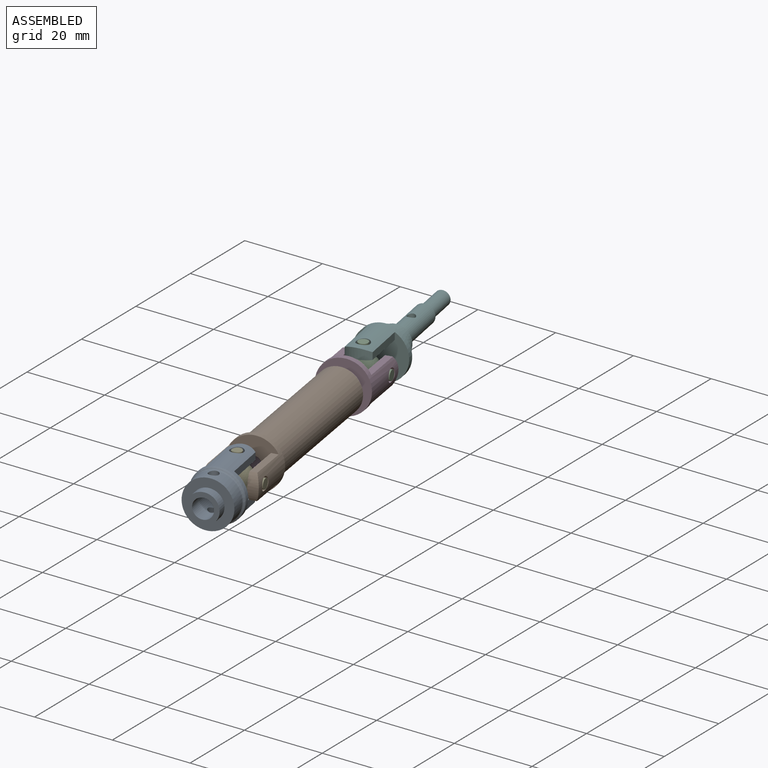
[diagram: assembled view]
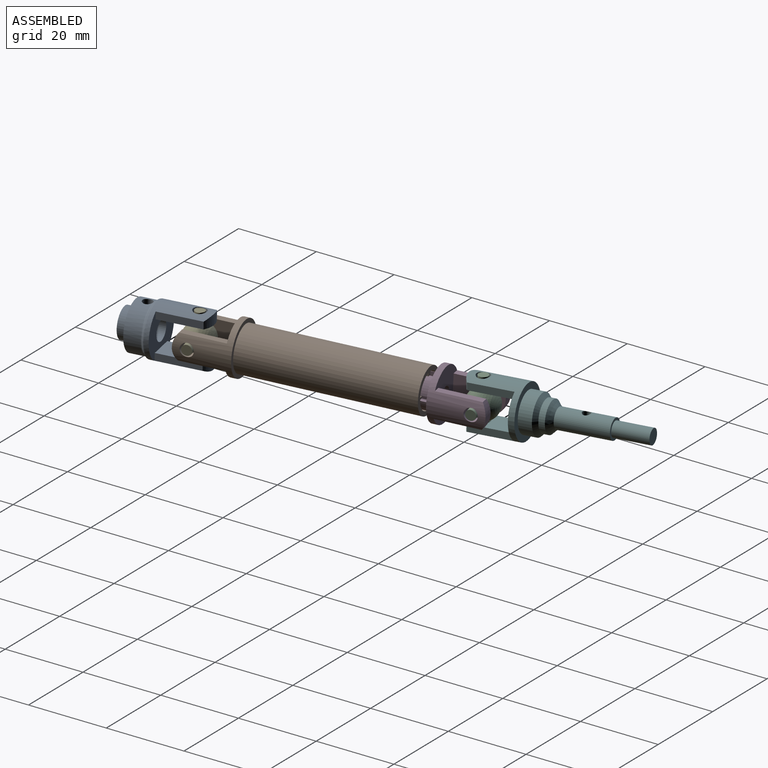
[diagram: assembled view, second angle]
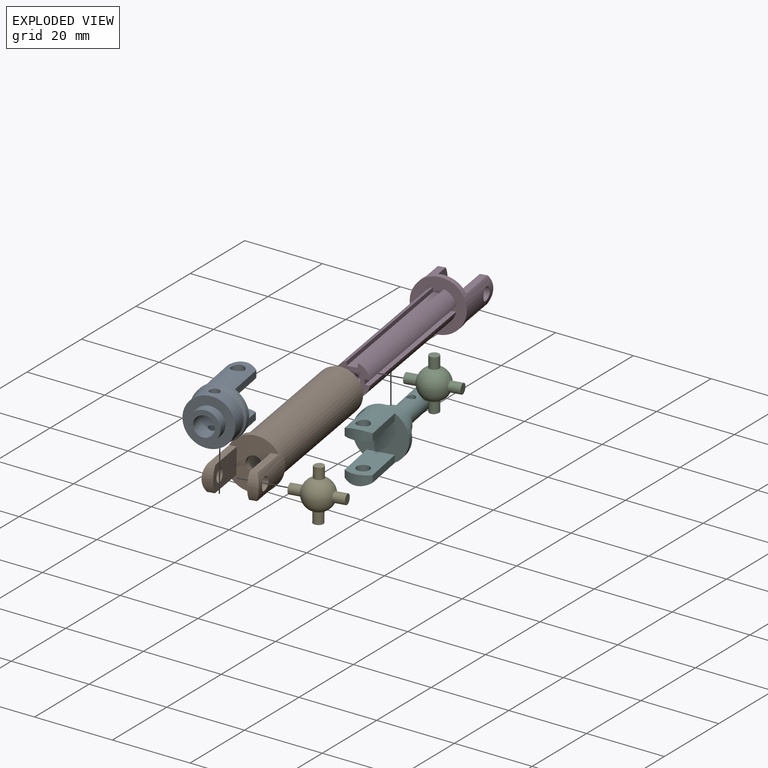
[diagram: exploded view]
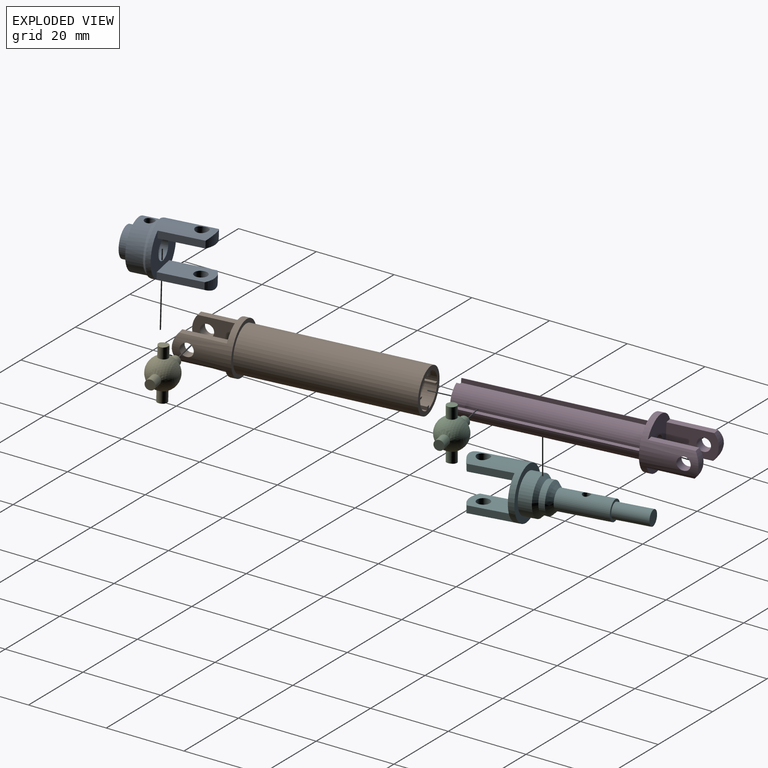
[diagram: exploded view, second angle]
ASSEMBLY  parts=6 mates=5
PART A: 23 faces, bbox 14.3x20.8x13.7 mm
  f0: cylinder r=1.27mm len=3.56mm, axis (0,0,1), area 28.4mm2, adj f15,f22
  f1: plane 12.19x6.51mm, normal (0,0,1), area 68.5mm2, adj f5,f6,f8,f11,f12
  f2: cylinder r=6.6mm len=13.36mm, axis (0,-1,0), area 191.9mm2, adj f4,f5,f6,f7,f8,f9,f10,f11
  f3: plane 12.19x6.51mm, normal (0,0,-1), area 68.5mm2, adj f4,f6,f7,f9,f10
  f4: cylinder r=5.3mm len=6.51mm, axis (0,0,-1), area 12.7mm2, adj f2,f3,f9,f10
  f5: cylinder r=5.3mm len=6.51mm, axis (0,0,1), area 15.7mm2, adj f1,f2,f11,f12
  f6: plane 13.21x11.49mm, normal (0,1,0), area 85.6mm2, adj f1,f2,f3,f9,f10,f11,f12,f22
  f7: cylinder r=1.65mm len=3.3mm, axis (0,0,-1), area 25.5mm2, adj f2,f3
  f8: cylinder r=1.65mm len=3.3mm, axis (0,0,-1), area 27.1mm2, adj f1,f2
  f9: plane 11.08x1.81mm, normal (1,0,0), area 20mm2, adj f2,f3,f4,f6
  f10: plane 11.08x1.81mm, normal (-1,0,0), area 20mm2, adj f2,f3,f4,f6
  f11: plane 11.08x1.81mm, normal (1,0,0), area 20mm2, adj f1,f2,f5,f6
  f12: plane 11.08x1.81mm, normal (-1,0,0), area 20mm2, adj f1,f2,f5,f6
  f13: plane 12.19x12.19mm, normal (0,-1,0), area 71.1mm2, adj f15,f20
  f14: cylinder r=1.27mm len=3.56mm, axis (0,0,1), area 28.4mm2, adj f15,f22
  f15: cylinder r=6.1mm len=12.19mm, axis (0,-1,0), area 145.5mm2, adj f0,f13,f14,f16,f17
  f16: torus R=6.6mm, axis (0,1,0), area 10.5mm2, adj f15,f17,f19
  f17: bspline ~13.22x7.89mm, area 10.1mm2, adj f15,f16,f18
  f18: bspline ~13.21x8.07mm, area 10.7mm2, adj f2,f17,f19
  f19: bspline ~13.21x8.1mm, area 11.1mm2, adj f2,f16,f18
  f20: cylinder r=3.81mm len=7.62mm, axis (0,1,0), area 60.8mm2, adj f13,f21
  f21: plane 7.62x7.62mm, normal (0,-1,0), area 25.3mm2, adj f20,f22
  f22: cylinder r=2.54mm len=8.64mm, axis (0,-1,0), area 127.3mm2, adj f0,f6,f14,f21
PART B: 33 faces, bbox 13.2x56.4x13.2 mm
  f0: plane 8.88x8.83mm, normal (0,1,0), area 48mm2, adj f14,f15,f16,f17,f18,f19,f20,f21
  f1: plane 13.21x13.21mm, normal (0,1,0), area 38.9mm2, adj f6,f31
  f2: cylinder r=5.3mm len=6.51mm, axis (-1,0,0), area 12.7mm2, adj f3,f6,f11,f13
  f3: plane 12.19x6.51mm, normal (-1,0,0), area 68.5mm2, adj f2,f7,f8,f11,f13
  f4: cylinder r=5.3mm len=6.51mm, axis (1,0,0), area 15.7mm2, adj f5,f6,f10,f12
  f5: plane 12.19x6.51mm, normal (1,0,0), area 68.5mm2, adj f4,f7,f9,f10,f12
  f6: cylinder r=6.6mm len=13.72mm, axis (0,1,0), area 207.2mm2, adj f1,f2,f4,f7,f8,f9,f10,f11
  f7: plane 13.21x11.49mm, normal (0,-1,0), area 94.5mm2, adj f3,f5,f6,f10,f11,f12,f13,f14
  f8: cylinder r=1.65mm len=3.3mm, axis (-1,0,0), area 25.5mm2, adj f3,f6
  f9: cylinder r=1.65mm len=3.3mm, axis (-1,0,0), area 27.1mm2, adj f5,f6
  f10: plane 11.08x1.81mm, normal (0,0,-1), area 20mm2, adj f4,f5,f6,f7
  f11: plane 11.08x1.81mm, normal (0,0,-1), area 20mm2, adj f2,f3,f6,f7
  f12: plane 11.08x1.81mm, normal (0,0,1), area 20mm2, adj f4,f5,f6,f7
  f13: plane 11.08x1.81mm, normal (0,0,1), area 20mm2, adj f2,f3,f6,f7
  f14: cylinder r=1.91mm len=3.81mm, axis (0,1,0), area 18.2mm2, adj f0,f7
  f15: cylinder r=4.45mm len=42.67mm, axis (0,-1,0), area 265.4mm2, adj f0,f16,f30,f32
  f16: plane 42.67x0.86mm, normal (1,0,0), area 36.7mm2, adj f0,f15,f17,f32
  f17: plane 42.67x1.02mm, normal (0,0,-1), area 43.4mm2, adj f0,f16,f18,f32
  f18: plane 42.67x0.86mm, normal (-1,0,0), area 36.7mm2, adj f0,f17,f19,f32
  f19: cylinder r=4.45mm len=42.67mm, axis (0,-1,0), area 265.4mm2, adj f0,f18,f20,f32
  f20: plane 42.67x0.88mm, normal (0,0,1), area 37.6mm2, adj f0,f19,f21,f32
  f21: plane 42.67x0.51mm, normal (1,0,0), area 21.7mm2, adj f0,f20,f22,f32
  f22: plane 42.67x0.88mm, normal (0,0,-1), area 37.6mm2, adj f0,f21,f23,f32
  f23: cylinder r=4.45mm len=42.67mm, axis (0,-1,0), area 265.4mm2, adj f0,f22,f24,f32
  f24: plane 42.67x0.86mm, normal (-1,0,0), area 36.7mm2, adj f0,f23,f25,f32
  f25: plane 42.67x1.02mm, normal (0,0,1), area 43.4mm2, adj f0,f24,f26,f32
  f26: plane 42.67x0.86mm, normal (1,0,0), area 36.7mm2, adj f0,f25,f27,f32
  f27: cylinder r=4.45mm len=42.67mm, axis (0,-1,0), area 265.4mm2, adj f0,f26,f28,f32
  f28: plane 42.67x0.88mm, normal (0,0,-1), area 37.6mm2, adj f0,f27,f29,f32
  f29: plane 42.67x0.51mm, normal (-1,0,0), area 21.7mm2, adj f0,f28,f30,f32
  f30: plane 42.67x0.88mm, normal (0,0,1), area 37.6mm2, adj f0,f15,f29,f32
  f31: cylinder r=5.59mm len=42.67mm, axis (0,-1,0), area 1498.2mm2, adj f1,f32
  f32: plane 11.18x11.18mm, normal (0,1,0), area 38.7mm2, adj f15,f16,f17,f18,f19,f20,f21,f22
PART C: 9 faces, bbox 13.3x7.9x13.2 mm
  f0: cylinder r=6.6mm len=2.54mm, axis (0,1,0), area 5.1mm2, adj f1
  f1: cylinder r=1.27mm len=2.88mm, axis (0,0,1), area 22.5mm2, adj f0,f8
  f2: cylinder r=1.27mm len=2.9mm, axis (0,0,-1), area 23.2mm2, adj f3,f8
  f3: plane 2.54x2.54mm, normal (0,0,1), area 5.1mm2, adj f2
  f4: cylinder r=1.27mm len=2.9mm, axis (-1,0,0), area 23.2mm2, adj f5,f8
  f5: plane 2.54x2.54mm, normal (1,0,0), area 5.1mm2, adj f4
  f6: cylinder r=1.27mm len=2.9mm, axis (1,0,0), area 23.2mm2, adj f7,f8
  f7: plane 2.54x2.54mm, normal (-1,0,0), area 5.1mm2, adj f6
  f8: sphere r=3.94mm, area 174mm2, adj f1,f2,f4,f6
PART D: 31 faces, bbox 13.2x58.4x13.2 mm
  f0: plane 13.21x13.21mm, normal (0,-1,0), area 91.1mm2, adj f5,f14,f15,f16,f17,f18,f19,f20
  f1: cylinder r=5.3mm len=6.51mm, axis (-1,0,0), area 12.7mm2, adj f2,f5,f10,f12
  f2: plane 12.19x6.51mm, normal (-1,0,0), area 68.5mm2, adj f1,f6,f7,f10,f12
  f3: cylinder r=5.3mm len=6.51mm, axis (1,0,0), area 15.7mm2, adj f4,f5,f9,f11
  f4: plane 12.19x6.51mm, normal (1,0,0), area 68.5mm2, adj f3,f6,f8,f9,f11
  f5: cylinder r=6.6mm len=13.72mm, axis (0,-1,0), area 207.2mm2, adj f0,f1,f3,f6,f7,f8,f9,f10
  f6: plane 13.21x11.49mm, normal (0,1,0), area 94.5mm2, adj f2,f4,f5,f9,f10,f11,f12,f13
  f7: cylinder r=1.65mm len=3.3mm, axis (-1,0,0), area 25.5mm2, adj f2,f5
  f8: cylinder r=1.65mm len=3.3mm, axis (-1,0,0), area 27.1mm2, adj f4,f5
  f9: plane 11.08x1.81mm, normal (0,0,1), area 20mm2, adj f3,f4,f5,f6
  f10: plane 11.08x1.81mm, normal (0,0,1), area 20mm2, adj f1,f2,f5,f6
  f11: plane 11.08x1.81mm, normal (0,0,-1), area 20mm2, adj f3,f4,f5,f6
  f12: plane 11.08x1.81mm, normal (0,0,-1), area 20mm2, adj f1,f2,f5,f6
  f13: cylinder r=1.91mm len=46.23mm, axis (0,-1,0), area 553.3mm2, adj f6,f30
  f14: plane 44.7x2.54mm, normal (0,0,1), area 113.5mm2, adj f0,f15,f29,f30
  f15: plane 44.7x1.07mm, normal (1,0,0), area 48mm2, adj f0,f14,f16,f30
  f16: cylinder r=4.19mm len=44.7mm, axis (0,1,0), area 208.1mm2, adj f0,f15,f17,f30
  f17: plane 44.7x1.22mm, normal (0,0,-1), area 54.6mm2, adj f0,f16,f18,f30
  f18: plane 44.7x1.27mm, normal (-1,0,0), area 56.8mm2, adj f0,f17,f19,f30
  f19: plane 44.7x1.22mm, normal (0,0,1), area 54.6mm2, adj f0,f18,f20,f30
  f20: cylinder r=4.19mm len=44.7mm, axis (0,1,0), area 208.1mm2, adj f0,f19,f21,f30
  f21: plane 44.7x1.07mm, normal (1,0,0), area 48mm2, adj f0,f20,f22,f30
  f22: plane 44.7x2.54mm, normal (0,0,-1), area 113.5mm2, adj f0,f21,f23,f30
  f23: plane 44.7x1.07mm, normal (-1,0,0), area 48mm2, adj f0,f22,f24,f30
  f24: cylinder r=4.19mm len=44.7mm, axis (0,1,0), area 208.1mm2, adj f0,f23,f25,f30
  f25: plane 44.7x1.22mm, normal (0,0,1), area 54.6mm2, adj f0,f24,f26,f30
  f26: plane 44.7x1.27mm, normal (1,0,0), area 56.8mm2, adj f0,f25,f27,f30
  f27: plane 44.7x1.22mm, normal (0,0,-1), area 54.6mm2, adj f0,f26,f28,f30
  f28: cylinder r=4.19mm len=44.7mm, axis (0,1,0), area 208.1mm2, adj f0,f27,f29,f30
  f29: plane 44.7x1.07mm, normal (-1,0,0), area 48mm2, adj f0,f14,f28,f30
  f30: plane 8.29x7.99mm, normal (0,-1,0), area 34.5mm2, adj f13,f14,f15,f16,f17,f18,f19,f20
PART E: 9 faces, bbox 13.3x7.9x13.2 mm
  f0: cylinder r=6.6mm len=2.54mm, axis (0,-1,0), area 5.1mm2, adj f1
  f1: cylinder r=1.27mm len=2.88mm, axis (0,0,-1), area 22.5mm2, adj f0,f8
  f2: cylinder r=1.27mm len=2.9mm, axis (0,0,1), area 23.2mm2, adj f3,f8
  f3: plane 2.54x2.54mm, normal (0,0,-1), area 5.1mm2, adj f2
  f4: cylinder r=1.27mm len=2.9mm, axis (-1,0,0), area 23.2mm2, adj f5,f8
  f5: plane 2.54x2.54mm, normal (1,0,0), area 5.1mm2, adj f4
  f6: cylinder r=1.27mm len=2.9mm, axis (1,0,0), area 23.2mm2, adj f7,f8
  f7: plane 2.54x2.54mm, normal (-1,0,0), area 5.1mm2, adj f6
  f8: sphere r=3.94mm, area 174mm2, adj f1,f2,f4,f6
PART F: 22 faces, bbox 13.2x42.9x13.2 mm
  f0: plane 12.19x6.51mm, normal (0,0,-1), area 68.5mm2, adj f4,f15,f17,f20,f21
  f1: cylinder r=6.6mm len=13.72mm, axis (0,1,0), area 207.2mm2, adj f3,f4,f12,f15,f16,f17,f18,f19
  f2: plane 12.19x6.51mm, normal (0,0,1), area 68.5mm2, adj f3,f15,f16,f18,f19
  f3: cylinder r=5.3mm len=6.51mm, axis (0,0,1), area 12.7mm2, adj f1,f2,f18,f19
  f4: cylinder r=5.3mm len=6.51mm, axis (0,0,-1), area 15.7mm2, adj f0,f1,f20,f21
  f5: cylinder r=1.91mm len=8.89mm, axis (0,1,0), area 106.4mm2, adj f6,f7
  f6: plane 3.81x3.81mm, normal (0,1,0), area 11.4mm2, adj f5
  f7: plane 5.08x5.08mm, normal (0,1,0), area 8.9mm2, adj f5,f9
  f8: cylinder r=1.02mm len=5.08mm, axis (0,0,1), area 32.4mm2, adj f9
  f9: cylinder r=2.54mm len=13.08mm, axis (0,-1,0), area 202.1mm2, adj f7,f8,f14
  f10: cylinder r=3.94mm len=7.87mm, axis (0,1,0), area 37.7mm2, adj f13,f14
  f11: cylinder r=4.95mm len=9.91mm, axis (0,1,0), area 102.8mm2, adj f12,f13
  f12: plane 13.21x13.21mm, normal (0,1,0), area 59.9mm2, adj f1,f11
  f13: cone r=4.95mm half-angle=45deg, axis (0,-1,0), area 40.1mm2, adj f10,f11
  f14: cone r=3.94mm half-angle=45deg, axis (0,-1,0), area 40.2mm2, adj f9,f10
  f15: plane 13.21x11.49mm, normal (0,-1,0), area 105.9mm2, adj f0,f1,f2,f18,f19,f20,f21
  f16: cylinder r=1.65mm len=3.3mm, axis (0,0,1), area 25.5mm2, adj f1,f2
  f17: cylinder r=1.65mm len=3.3mm, axis (0,0,1), area 27.1mm2, adj f0,f1
  f18: plane 11.08x1.81mm, normal (1,0,0), area 20mm2, adj f1,f2,f3,f15
  f19: plane 11.08x1.81mm, normal (-1,0,0), area 20mm2, adj f1,f2,f3,f15
  f20: plane 11.08x1.81mm, normal (1,0,0), area 20mm2, adj f0,f1,f4,f15
  f21: plane 11.08x1.81mm, normal (-1,0,0), area 20mm2, adj f0,f1,f4,f15
PLACE A rot(axis=(-0.12,-0.01,0.99),11.1deg) t=(-21.37,49.38,11.74)mm
PLACE B rot(axis=(-0.21,-0.02,0.98),11.2deg) t=(-21.34,49.28,9.25)mm
PLACE C rot(axis=(0,0,1),11deg) t=(-13.29,7.75,12.6)mm
PLACE D rot(axis=(-0.21,-0.02,0.98),11.2deg) t=(-13.27,7.72,10.98)mm
PLACE E rot(axis=(-0.12,-0.01,0.99),11.1deg) t=(-21.37,49.38,11.75)mm
PLACE F rot(axis=(0,0,1),10deg) t=(-12.62,7.88,12.61)mm
MATE revolute D.f7 <-> C.f6  axis (-0.98,-0.19,0) through (0.75,-29.76,12.6)mm
MATE revolute E.f1 <-> A.f7  axis (0,-0.02,-1) through (6.75,-95.5,8.65)mm
MATE revolute C.f1 <-> F.f16  axis (0,0,1) through (-5.76,-31.02,19.23)mm
MATE revolute E.f4 <-> B.f8  axis (0.98,0.19,0) through (13.23,-94.08,15.28)mm
MATE slider B.f23 <-> D.f13  axis (0.19,-0.98,0.04) through (-3.35,-43.4,13.11)mm
